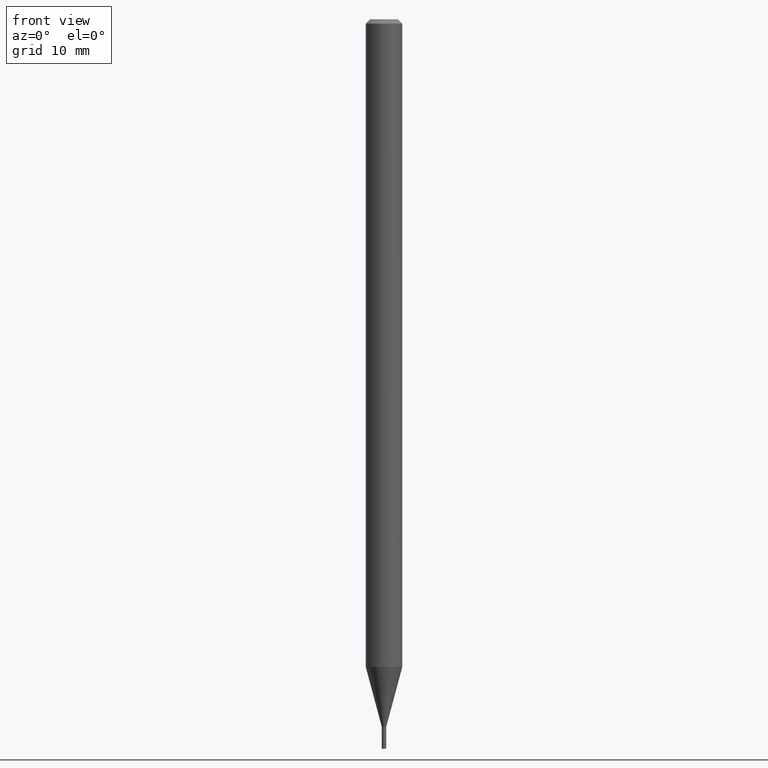
[diagram: clean part render]
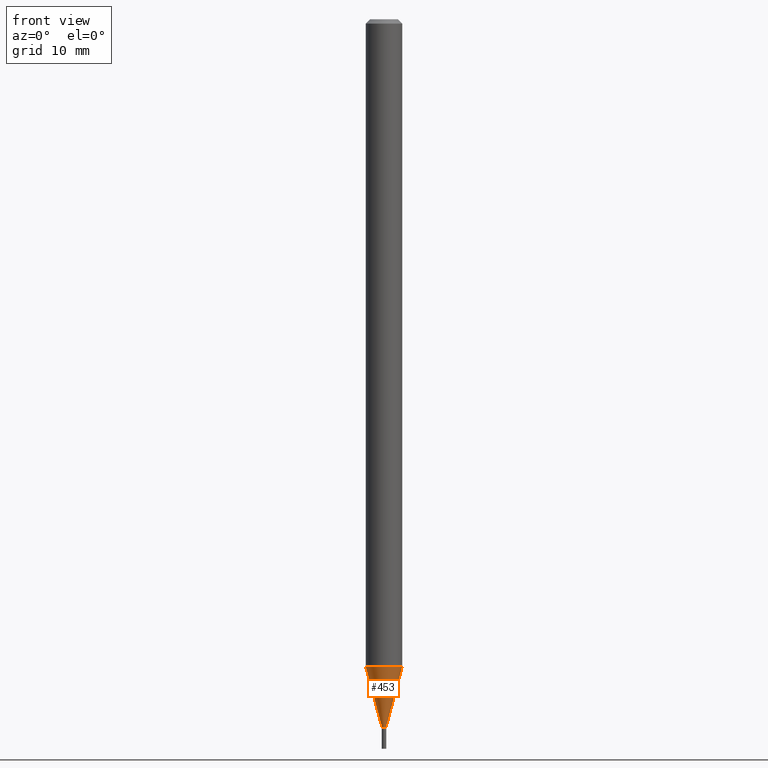
[diagram: same view with one face highlighted and labeled with its STEP entity id]
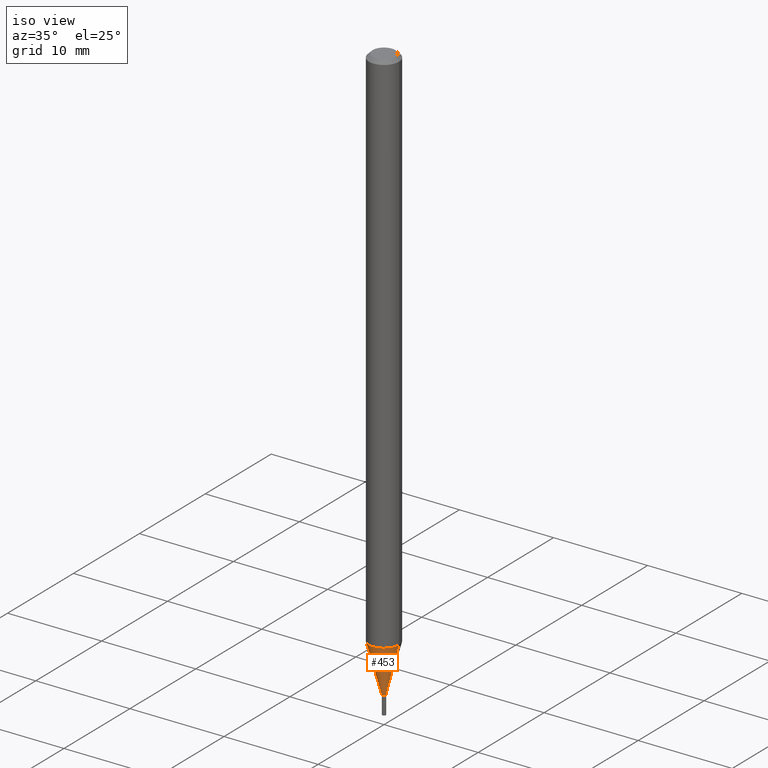
[diagram: same view with one face highlighted and labeled with its STEP entity id]
A machine part, front view. The second image highlights one B-rep face of the part: STEP entity #453.
A second angle (iso view) of the same face is appended — the face is thin or edge-on in the first view.
In plain terms, the highlighted conical surface has half-angle 15 deg.
Its self-contained STEP definition (entity closure, byte-faithful):
#77 = VERTEX_POINT ( 'NONE', #423 ) ;
#78 = ORIENTED_EDGE ( 'NONE', *, *, #286, .T. ) ;
#83 = FACE_OUTER_BOUND ( 'NONE', #223, .T. ) ;
#85 = EDGE_CURVE ( 'NONE', #199, #128, #393, .T. ) ;
#88 = VECTOR ( 'NONE', #253, 39.37007874015748143 ) ;
#90 = DIRECTION ( 'NONE',  ( 1.000000000000000000, -6.982962677686212279E-15, 0.000000000000000000 ) ) ;
#103 = CARTESIAN_POINT ( 'NONE',  ( -0.007499999999999920793, -8.413551541512620408E-15, -2.425000000000000266 ) ) ;
#108 = DIRECTION ( 'NONE',  ( -2.445468806185136597E-29, 3.491481338843145583E-15, 1.000000000000000000 ) ) ;
#128 = VERTEX_POINT ( 'NONE', #318 ) ;
#139 = CARTESIAN_POINT ( 'NONE',  ( -0.007499999999999920793, -7.859816681046961003E-15, -2.425000000000000266 ) ) ;
#140 = CIRCLE ( 'NONE', #463, 0.06250000000000000000 ) ;
#154 = CONICAL_SURFACE ( 'NONE', #363, 0.007499999999999920793, 0.2617993877991506846 ) ;
#155 = EDGE_CURVE ( 'NONE', #128, #77, #140, .T. ) ;
#157 = VERTEX_POINT ( 'NONE', #320 ) ;
#165 = CARTESIAN_POINT ( 'NONE',  ( 0.007499999999999920793, -8.519214466777275048E-15, -2.425000000000000266 ) ) ;
#186 = AXIS2_PLACEMENT_3D ( 'NONE', #434, #108, #188 ) ;
#188 = DIRECTION ( 'NONE',  ( 1.000000000000000000, -6.982962677686212279E-15, 0.000000000000000000 ) ) ;
#199 = VERTEX_POINT ( 'NONE', #139 ) ;
#221 = VECTOR ( 'NONE', #319, 39.37007874015748143 ) ;
#223 = EDGE_LOOP ( 'NONE', ( #448, #242, #78, #379 ) ) ;
#230 = CARTESIAN_POINT ( 'NONE',  ( 5.930261854998957144E-29, -8.466842246694628363E-15, -2.425000000000000266 ) ) ;
#242 = ORIENTED_EDGE ( 'NONE', *, *, #387, .T. ) ;
#253 = DIRECTION ( 'NONE',  ( -0.2588190451025219607, 5.211531920934553408E-15, 0.9659258262890679791 ) ) ;
#277 = DIRECTION ( 'NONE',  ( -2.445468806185136597E-29, 3.491481338843145583E-15, 1.000000000000000000 ) ) ;
#286 = EDGE_CURVE ( 'NONE', #157, #77, #376, .T. ) ;
#290 = DIRECTION ( 'NONE',  ( 1.000000000000000000, -6.982962677686262766E-15, 0.000000000000000000 ) ) ;
#318 = CARTESIAN_POINT ( 'NONE',  ( -0.06250000000000000000, -7.306081820581300020E-15, -2.219737205583712569 ) ) ;
#319 = DIRECTION ( 'NONE',  ( 0.2588190451025219607, 1.565188264969617432E-15, 0.9659258262890679791 ) ) ;
#320 = CARTESIAN_POINT ( 'NONE',  ( 0.007499999999999920793, -8.519214466777275048E-15, -2.425000000000000266 ) ) ;
#359 = CARTESIAN_POINT ( 'NONE',  ( 5.428298094183532737E-29, -7.750171030431364214E-15, -2.219737205583712569 ) ) ;
#363 = AXIS2_PLACEMENT_3D ( 'NONE', #230, #277, #90 ) ;
#376 = LINE ( 'NONE', #165, #221 ) ;
#379 = ORIENTED_EDGE ( 'NONE', *, *, #155, .F. ) ;
#387 = EDGE_CURVE ( 'NONE', #199, #157, #397, .T. ) ;
#393 = LINE ( 'NONE', #103, #88 ) ;
#397 = CIRCLE ( 'NONE', #186, 0.007499999999999920793 ) ;
#420 = DIRECTION ( 'NONE',  ( -2.445468806185136597E-29, 3.491481338843145583E-15, 1.000000000000000000 ) ) ;
#423 = CARTESIAN_POINT ( 'NONE',  ( 0.06250000000000000000, -8.186606197786754305E-15, -2.219737205583712569 ) ) ;
#434 = CARTESIAN_POINT ( 'NONE',  ( 5.930261854998957144E-29, -8.466842246694628363E-15, -2.425000000000000266 ) ) ;
#448 = ORIENTED_EDGE ( 'NONE', *, *, #85, .F. ) ;
#453 = ADVANCED_FACE ( 'NONE', ( #83 ), #154, .T. ) ;
#463 = AXIS2_PLACEMENT_3D ( 'NONE', #359, #420, #290 ) ;